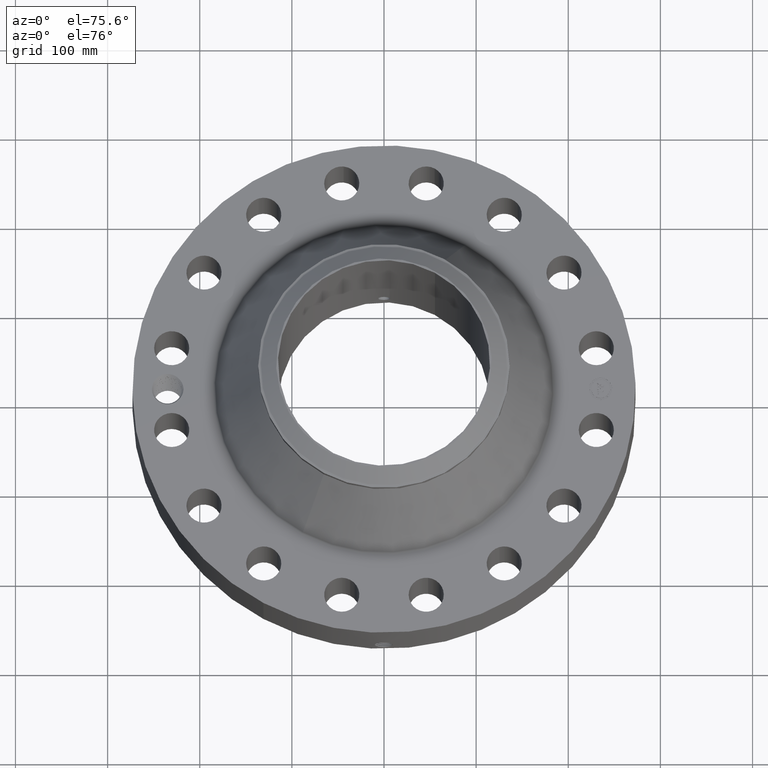
[diagram: clean part render]
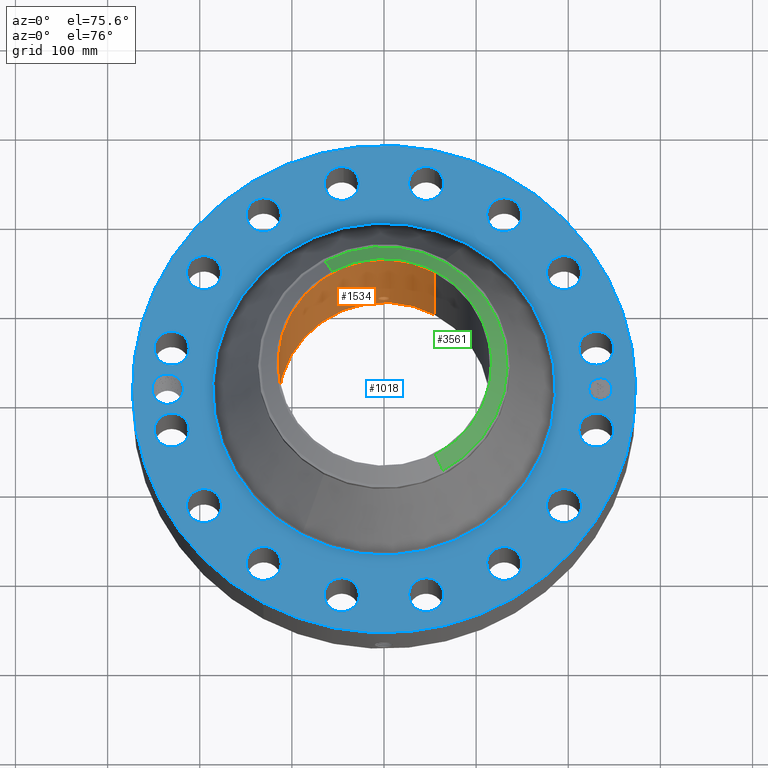
[diagram: same view with three faces highlighted in distinct colors, each labeled with its STEP entity id]
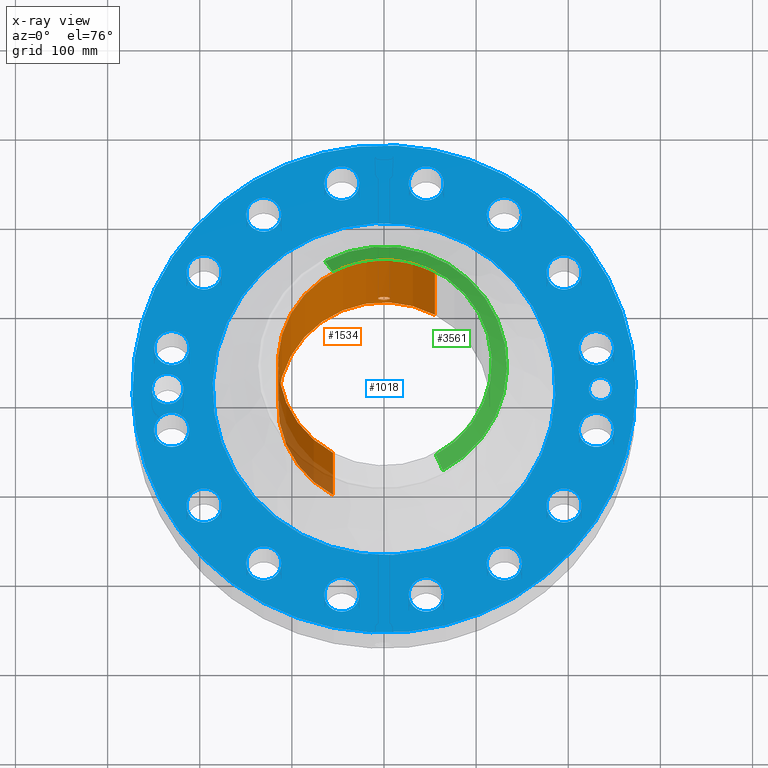
[diagram: x-ray of the same camera — body ghosted, the three highlighted faces saturated]
A machine part, auxiliary view with three faces highlighted in distinct colors.
The next image is the same camera in x-ray (body ghosted, the three faces saturated) — at least one of them is partly hidden behind the body in this view.
Their STEP definitions:

[orange] entity #1534 — the highlighted cylindrical surface (partial cylindrical patch) has radius 115.087 mm, axis along (0, 0, -1).
#262=AXIS2_PLACEMENT_3D('Circle Axis2P3D',#260,#261,$) ;
#1411=AXIS2_PLACEMENT_3D('Cylinder Axis2P3D',#1408,#1409,#1410) ;
#1483=AXIS2_PLACEMENT_3D('Circle Axis2P3D',#1481,#1482,$) ;
#255=CARTESIAN_POINT('Vertex',(2.17227711542,3.97632658794,0.250000000001)) ;
#257=CARTESIAN_POINT('Vertex',(-2.17227711542,-3.97632658794,0.250000000001)) ;
#260=CARTESIAN_POINT('Axis2P3D Location',(0.,0.,0.250000000001)) ;
#1408=CARTESIAN_POINT('Axis2P3D Location',(0.,0.,3.87500000002)) ;
#1417=CARTESIAN_POINT('Vertex',(2.17227711542,3.97632658794,7.50000000003)) ;
#1419=CARTESIAN_POINT('Vertex',(-2.17227711542,-3.97632658794,7.50000000003)) ;
#1422=CARTESIAN_POINT('Line Origine',(2.17227711542,3.97632658794,3.87500000002)) ;
#1427=CARTESIAN_POINT('Line Origine',(-2.17227711542,-3.97632658794,3.87500000002)) ;
#1481=CARTESIAN_POINT('Axis2P3D Location',(0.,0.,7.50000000003)) ;
#1493=CARTESIAN_POINT('Control Point',(0.219395640473,4.52568520261,1.05985638466)) ;
#1494=CARTESIAN_POINT('Control Point',(0.206921797472,4.52628990812,1.08268960111)) ;
#1495=CARTESIAN_POINT('Control Point',(0.191478678792,4.52699548081,1.10389800206)) ;
#1496=CARTESIAN_POINT('Control Point',(0.173346302341,4.52774738713,1.12296901975)) ;
#1497=CARTESIAN_POINT('Control Point',(0.112144340374,4.52992190758,1.17244362319)) ;
#1498=CARTESIAN_POINT('Control Point',(0.0349953647202,4.53133468305,1.19597035494)) ;
#1499=CARTESIAN_POINT('Control Point',(-0.0195460463266,4.53144042093,1.19761227825)) ;
#1500=CARTESIAN_POINT('Control Point',(-0.124127171529,4.52988594276,1.17247727722)) ;
#1501=CARTESIAN_POINT('Control Point',(-0.203169532668,4.5266673525,1.09958243678)) ;
#1502=CARTESIAN_POINT('Control Point',(-0.232150948599,4.52508220159,1.05337696747)) ;
#1503=CARTESIAN_POINT('Control Point',(-0.255830507533,4.52377648326,0.975217106169)) ;
#1504=CARTESIAN_POINT('Control Point',(-0.248300479991,4.5241913412,0.895819479664)) ;
#1505=CARTESIAN_POINT('Control Point',(-0.242066282354,4.52453988756,0.869228622534)) ;
#1506=CARTESIAN_POINT('Control Point',(-0.232326354228,4.52505834897,0.843813128112)) ;
#1507=CARTESIAN_POINT('Control Point',(-0.219395640473,4.52568520261,0.820143615352)) ;
#1508=CARTESIAN_POINT('Vertex',(0.219395640473,4.52568520261,1.05985638466)) ;
#1510=CARTESIAN_POINT('Vertex',(-0.219395640473,4.52568520261,0.820143615352)) ;
#1514=CARTESIAN_POINT('Control Point',(-0.219395640473,4.52568520261,0.820143615352)) ;
#1515=CARTESIAN_POINT('Control Point',(-0.206921797479,4.52628990812,0.797310398908)) ;
#1516=CARTESIAN_POINT('Control Point',(-0.191478678808,4.52699548081,0.776101997968)) ;
#1517=CARTESIAN_POINT('Control Point',(-0.173346302318,4.52774738713,0.757030980239)) ;
#1518=CARTESIAN_POINT('Control Point',(-0.112144340354,4.52992190758,0.707556376813)) ;
#1519=CARTESIAN_POINT('Control Point',(-0.0349953647085,4.53133468305,0.684029645063)) ;
#1520=CARTESIAN_POINT('Control Point',(0.019546046319,4.53144042093,0.682387721754)) ;
#1521=CARTESIAN_POINT('Control Point',(0.124127171536,4.52988594276,0.707522722783)) ;
#1522=CARTESIAN_POINT('Control Point',(0.20316953268,4.5266673525,0.780417563245)) ;
#1523=CARTESIAN_POINT('Control Point',(0.232150948594,4.52508220159,0.826623032526)) ;
#1524=CARTESIAN_POINT('Control Point',(0.255830507546,4.52377648326,0.904782893872)) ;
#1525=CARTESIAN_POINT('Control Point',(0.248300479983,4.5241913412,0.984180520424)) ;
#1526=CARTESIAN_POINT('Control Point',(0.242066282382,4.52453988756,1.0107713774)) ;
#1527=CARTESIAN_POINT('Control Point',(0.232326354246,4.52505834897,1.03618687186)) ;
#1528=CARTESIAN_POINT('Control Point',(0.219395640473,4.52568520261,1.05985638466)) ;
#261=DIRECTION('Axis2P3D Direction',(0.,0.,-0.0393700787402)) ;
#1409=DIRECTION('Axis2P3D Direction',(0.,0.,-0.0393700787402)) ;
#1410=DIRECTION('Axis2P3D XDirection',(-0.0188750212049,-0.0345504945626,0.)) ;
#1423=DIRECTION('Vector Direction',(0.,0.,-0.0393700787402)) ;
#1428=DIRECTION('Vector Direction',(0.,0.,-0.0393700787402)) ;
#1482=DIRECTION('Axis2P3D Direction',(0.,0.,-0.0393700787402)) ;
#1424=VECTOR('Line Direction',#1423,0.0393700787402) ;
#1429=VECTOR('Line Direction',#1428,0.0393700787402) ;
#1487=ORIENTED_EDGE('',*,*,#1485,.F.) ;
#1488=ORIENTED_EDGE('',*,*,#1431,.T.) ;
#1489=ORIENTED_EDGE('',*,*,#264,.T.) ;
#1490=ORIENTED_EDGE('',*,*,#1426,.F.) ;
#1531=ORIENTED_EDGE('',*,*,#1512,.F.) ;
#1532=ORIENTED_EDGE('',*,*,#1529,.F.) ;
#1533=FACE_BOUND('',#1530,.T.) ;
#1534=ADVANCED_FACE('PartBody',(#1491,#1533),#1412,.F.) ;
#1492=B_SPLINE_CURVE_WITH_KNOTS('',5,(#1493,#1494,#1495,#1496,#1497,#1498,#1499,#1500,#1501,#1502,#1503,#1504,#1505,#1506,#1507),.UNSPECIFIED.,.F.,.U.,(6,3,3,3,6),(0.,4.6742839612,14.0218472756,23.3718191631,28.2173048649),.UNSPECIFIED.) ;
#1513=B_SPLINE_CURVE_WITH_KNOTS('',5,(#1514,#1515,#1516,#1517,#1518,#1519,#1520,#1521,#1522,#1523,#1524,#1525,#1526,#1527,#1528),.UNSPECIFIED.,.F.,.U.,(6,3,3,3,6),(0.,4.67428395881,14.021847274,23.3718191628,28.2173048716),.UNSPECIFIED.) ;
#263=CIRCLE('generated circle',#262,4.53100000002) ;
#1484=CIRCLE('generated circle',#1483,4.53100000002) ;
#1412=CYLINDRICAL_SURFACE('generated cylinder',#1411,4.53100000002) ;
#264=EDGE_CURVE('',#258,#256,#263,.T.) ;
#1426=EDGE_CURVE('',#1418,#256,#1425,.T.) ;
#1431=EDGE_CURVE('',#1420,#258,#1430,.T.) ;
#1485=EDGE_CURVE('',#1420,#1418,#1484,.T.) ;
#1512=EDGE_CURVE('',#1509,#1511,#1492,.T.) ;
#1529=EDGE_CURVE('',#1511,#1509,#1513,.T.) ;
#1486=EDGE_LOOP('',(#1487,#1488,#1489,#1490)) ;
#1530=EDGE_LOOP('',(#1531,#1532)) ;
#1491=FACE_OUTER_BOUND('',#1486,.T.) ;
#1425=LINE('Line',#1422,#1424) ;
#1430=LINE('Line',#1427,#1429) ;
#256=VERTEX_POINT('',#255) ;
#258=VERTEX_POINT('',#257) ;
#1418=VERTEX_POINT('',#1417) ;
#1420=VERTEX_POINT('',#1419) ;
#1509=VERTEX_POINT('',#1508) ;
#1511=VERTEX_POINT('',#1510) ;

[blue] entity #1018 — the highlighted planar face has unit normal (0, 0, -1).
#58=AXIS2_PLACEMENT_3D('Circle Axis2P3D',#56,#57,$) ;
#542=AXIS2_PLACEMENT_3D('Circle Axis2P3D',#540,#541,$) ;
#642=AXIS2_PLACEMENT_3D('Plane Axis2P3D',#639,#640,#641) ;
#678=AXIS2_PLACEMENT_3D('Circle Axis2P3D',#676,#677,$) ;
#685=AXIS2_PLACEMENT_3D('Circle Axis2P3D',#683,#684,$) ;
#696=AXIS2_PLACEMENT_3D('Circle Axis2P3D',#694,#695,$) ;
#705=AXIS2_PLACEMENT_3D('Circle Axis2P3D',#703,#704,$) ;
#714=AXIS2_PLACEMENT_3D('Circle Axis2P3D',#712,#713,$) ;
#723=AXIS2_PLACEMENT_3D('Circle Axis2P3D',#721,#722,$) ;
#732=AXIS2_PLACEMENT_3D('Circle Axis2P3D',#730,#731,$) ;
#741=AXIS2_PLACEMENT_3D('Circle Axis2P3D',#739,#740,$) ;
#750=AXIS2_PLACEMENT_3D('Circle Axis2P3D',#748,#749,$) ;
#759=AXIS2_PLACEMENT_3D('Circle Axis2P3D',#757,#758,$) ;
#768=AXIS2_PLACEMENT_3D('Circle Axis2P3D',#766,#767,$) ;
#777=AXIS2_PLACEMENT_3D('Circle Axis2P3D',#775,#776,$) ;
#786=AXIS2_PLACEMENT_3D('Circle Axis2P3D',#784,#785,$) ;
#795=AXIS2_PLACEMENT_3D('Circle Axis2P3D',#793,#794,$) ;
#804=AXIS2_PLACEMENT_3D('Circle Axis2P3D',#802,#803,$) ;
#813=AXIS2_PLACEMENT_3D('Circle Axis2P3D',#811,#812,$) ;
#822=AXIS2_PLACEMENT_3D('Circle Axis2P3D',#820,#821,$) ;
#831=AXIS2_PLACEMENT_3D('Circle Axis2P3D',#829,#830,$) ;
#840=AXIS2_PLACEMENT_3D('Circle Axis2P3D',#838,#839,$) ;
#849=AXIS2_PLACEMENT_3D('Circle Axis2P3D',#847,#848,$) ;
#858=AXIS2_PLACEMENT_3D('Circle Axis2P3D',#856,#857,$) ;
#867=AXIS2_PLACEMENT_3D('Circle Axis2P3D',#865,#866,$) ;
#876=AXIS2_PLACEMENT_3D('Circle Axis2P3D',#874,#875,$) ;
#885=AXIS2_PLACEMENT_3D('Circle Axis2P3D',#883,#884,$) ;
#894=AXIS2_PLACEMENT_3D('Circle Axis2P3D',#892,#893,$) ;
#903=AXIS2_PLACEMENT_3D('Circle Axis2P3D',#901,#902,$) ;
#912=AXIS2_PLACEMENT_3D('Circle Axis2P3D',#910,#911,$) ;
#921=AXIS2_PLACEMENT_3D('Circle Axis2P3D',#919,#920,$) ;
#930=AXIS2_PLACEMENT_3D('Circle Axis2P3D',#928,#929,$) ;
#939=AXIS2_PLACEMENT_3D('Circle Axis2P3D',#937,#938,$) ;
#948=AXIS2_PLACEMENT_3D('Circle Axis2P3D',#946,#947,$) ;
#957=AXIS2_PLACEMENT_3D('Circle Axis2P3D',#955,#956,$) ;
#966=AXIS2_PLACEMENT_3D('Circle Axis2P3D',#964,#965,$) ;
#975=AXIS2_PLACEMENT_3D('Circle Axis2P3D',#973,#974,$) ;
#984=AXIS2_PLACEMENT_3D('Circle Axis2P3D',#982,#983,$) ;
#993=AXIS2_PLACEMENT_3D('Circle Axis2P3D',#991,#992,$) ;
#1002=AXIS2_PLACEMENT_3D('Circle Axis2P3D',#1000,#1001,$) ;
#1011=AXIS2_PLACEMENT_3D('Circle Axis2P3D',#1009,#1010,$) ;
#53=CARTESIAN_POINT('Vertex',(-5.15382454002,-9.43401254036,3.00000000001)) ;
#56=CARTESIAN_POINT('Axis2P3D Location',(0.,0.,3.00000000001)) ;
#60=CARTESIAN_POINT('Vertex',(5.15382454002,9.43401254036,3.00000000001)) ;
#540=CARTESIAN_POINT('Axis2P3D Location',(0.,0.,3.00000000001)) ;
#639=CARTESIAN_POINT('Axis2P3D Location',(0.,10.75,3.00000000001)) ;
#649=CARTESIAN_POINT('Control Point',(-8.56250000003,-2.23792987641E-015,3.00000000001)) ;
#650=CARTESIAN_POINT('Control Point',(-8.56486308622,0.0644949363409,3.00000000001)) ;
#651=CARTESIAN_POINT('Control Point',(-8.57479440552,0.128582344881,3.00000000001)) ;
#652=CARTESIAN_POINT('Control Point',(-8.59223336688,0.191067000151,3.00000000001)) ;
#653=CARTESIAN_POINT('Control Point',(-8.62965644107,0.281919288809,3.00000000001)) ;
#654=CARTESIAN_POINT('Control Point',(-8.68225432959,0.363946301711,3.00000000001)) ;
#655=CARTESIAN_POINT('Control Point',(-8.70198762269,0.390886934377,3.00000000001)) ;
#656=CARTESIAN_POINT('Control Point',(-8.72331642014,0.416507205361,3.00000000001)) ;
#657=CARTESIAN_POINT('Control Point',(-8.74612160305,0.440684604968,3.00000000001)) ;
#658=CARTESIAN_POINT('Vertex',(-8.56250000003,-2.23792987641E-015,3.00000000001)) ;
#660=CARTESIAN_POINT('Vertex',(-8.74612160305,0.440684604968,3.00000000001)) ;
#664=CARTESIAN_POINT('Control Point',(-8.56250000003,2.23792987641E-015,3.00000000001)) ;
#665=CARTESIAN_POINT('Control Point',(-8.56486374464,-0.0645129057181,3.00000000001)) ;
#666=CARTESIAN_POINT('Control Point',(-8.57479993211,-0.128618054953,3.00000000001)) ;
#667=CARTESIAN_POINT('Control Point',(-8.59223774309,-0.191096216165,3.00000000001)) ;
#668=CARTESIAN_POINT('Control Point',(-8.62967336766,-0.28197694147,3.00000000001)) ;
#669=CARTESIAN_POINT('Control Point',(-8.6822634033,-0.363983261862,3.00000000001)) ;
#670=CARTESIAN_POINT('Control Point',(-8.70202180582,-0.390949652124,3.00000000001)) ;
#671=CARTESIAN_POINT('Control Point',(-8.72337509328,-0.416588152242,3.00000000001)) ;
#672=CARTESIAN_POINT('Control Point',(-8.74620303266,-0.440777694156,3.00000000001)) ;
#673=CARTESIAN_POINT('Vertex',(-8.74620303266,-0.440777694156,3.00000000001)) ;
#676=CARTESIAN_POINT('Axis2P3D Location',(-9.25000000004,0.,3.00000000001)) ;
#680=CARTESIAN_POINT('Vertex',(-9.83745376697,0.320927455543,3.00000000001)) ;
#683=CARTESIAN_POINT('Axis2P3D Location',(-9.25000000004,0.,3.00000000001)) ;
#694=CARTESIAN_POINT('Axis2P3D Location',(9.07226384377,-1.80458547866,3.00000000001)) ;
#698=CARTESIAN_POINT('Vertex',(8.41407692235,-1.4450163247,3.00000000001)) ;
#700=CARTESIAN_POINT('Vertex',(9.73045076519,-2.16415463261,3.00000000001)) ;
#703=CARTESIAN_POINT('Axis2P3D Location',(9.07226384377,-1.80458547866,3.00000000001)) ;
#712=CARTESIAN_POINT('Axis2P3D Location',(0.,0.,3.00000000001)) ;
#716=CARTESIAN_POINT('Vertex',(-3.51132024854,-6.42742860196,3.00000000001)) ;
#718=CARTESIAN_POINT('Vertex',(3.51132024854,6.42742860196,3.00000000001)) ;
#721=CARTESIAN_POINT('Axis2P3D Location',(0.,0.,3.00000000001)) ;
#730=CARTESIAN_POINT('Axis2P3D Location',(7.69109391383,-5.13902465545,3.00000000001)) ;
#734=CARTESIAN_POINT('Vertex',(8.16157818109,-5.72310046754,3.00000000001)) ;
#736=CARTESIAN_POINT('Vertex',(7.22060964657,-4.55494884336,3.00000000001)) ;
#739=CARTESIAN_POINT('Axis2P3D Location',(7.69109391383,-5.13902465545,3.00000000001)) ;
#748=CARTESIAN_POINT('Axis2P3D Location',(5.13902465545,-7.69109391383,3.00000000001)) ;
#752=CARTESIAN_POINT('Vertex',(5.35017930381,-8.41075613632,3.00000000001)) ;
#754=CARTESIAN_POINT('Vertex',(4.92787000709,-6.97143169134,3.00000000001)) ;
#757=CARTESIAN_POINT('Axis2P3D Location',(5.13902465545,-7.69109391383,3.00000000001)) ;
#766=CARTESIAN_POINT('Axis2P3D Location',(1.80458547866,-9.07226384377,3.00000000001)) ;
#770=CARTESIAN_POINT('Vertex',(1.72426412702,-9.81795042704,3.00000000001)) ;
#772=CARTESIAN_POINT('Vertex',(1.88490683029,-8.32657726049,3.00000000001)) ;
#775=CARTESIAN_POINT('Axis2P3D Location',(1.80458547866,-9.07226384377,3.00000000001)) ;
#784=CARTESIAN_POINT('Axis2P3D Location',(-1.80458547866,-9.07226384377,3.00000000001)) ;
#788=CARTESIAN_POINT('Vertex',(-2.16415463261,-9.73045076519,3.00000000001)) ;
#790=CARTESIAN_POINT('Vertex',(-1.4450163247,-8.41407692235,3.00000000001)) ;
#793=CARTESIAN_POINT('Axis2P3D Location',(-1.80458547866,-9.07226384377,3.00000000001)) ;
#802=CARTESIAN_POINT('Axis2P3D Location',(-5.13902465545,-7.69109391383,3.00000000001)) ;
#806=CARTESIAN_POINT('Vertex',(-5.72310046754,-8.16157818109,3.00000000001)) ;
#808=CARTESIAN_POINT('Vertex',(-4.55494884336,-7.22060964657,3.00000000001)) ;
#811=CARTESIAN_POINT('Axis2P3D Location',(-5.13902465545,-7.69109391383,3.00000000001)) ;
#820=CARTESIAN_POINT('Axis2P3D Location',(-7.69109391383,-5.13902465545,3.00000000001)) ;
#824=CARTESIAN_POINT('Vertex',(-8.41075613632,-5.35017930381,3.00000000001)) ;
#826=CARTESIAN_POINT('Vertex',(-6.97143169134,-4.92787000709,3.00000000001)) ;
#829=CARTESIAN_POINT('Axis2P3D Location',(-7.69109391383,-5.13902465545,3.00000000001)) ;
#838=CARTESIAN_POINT('Axis2P3D Location',(-9.07226384377,-1.80458547866,3.00000000001)) ;
#842=CARTESIAN_POINT('Vertex',(-9.81795042704,-1.72426412702,3.00000000001)) ;
#844=CARTESIAN_POINT('Vertex',(-8.32657726049,-1.88490683029,3.00000000001)) ;
#847=CARTESIAN_POINT('Axis2P3D Location',(-9.07226384377,-1.80458547866,3.00000000001)) ;
#856=CARTESIAN_POINT('Axis2P3D Location',(-9.07226384377,1.80458547866,3.00000000001)) ;
#860=CARTESIAN_POINT('Vertex',(-9.73045076519,2.16415463261,3.00000000001)) ;
#862=CARTESIAN_POINT('Vertex',(-8.41407692235,1.4450163247,3.00000000001)) ;
#865=CARTESIAN_POINT('Axis2P3D Location',(-9.07226384377,1.80458547866,3.00000000001)) ;
#874=CARTESIAN_POINT('Axis2P3D Location',(-7.69109391383,5.13902465545,3.00000000001)) ;
#878=CARTESIAN_POINT('Vertex',(-8.16157818109,5.72310046754,3.00000000001)) ;
#880=CARTESIAN_POINT('Vertex',(-7.22060964657,4.55494884336,3.00000000001)) ;
#883=CARTESIAN_POINT('Axis2P3D Location',(-7.69109391383,5.13902465545,3.00000000001)) ;
#892=CARTESIAN_POINT('Axis2P3D Location',(-5.13902465545,7.69109391383,3.00000000001)) ;
#896=CARTESIAN_POINT('Vertex',(-5.35017930381,8.41075613632,3.00000000001)) ;
#898=CARTESIAN_POINT('Vertex',(-4.92787000709,6.97143169134,3.00000000001)) ;
#901=CARTESIAN_POINT('Axis2P3D Location',(-5.13902465545,7.69109391383,3.00000000001)) ;
#910=CARTESIAN_POINT('Axis2P3D Location',(-1.80458547866,9.07226384377,3.00000000001)) ;
#914=CARTESIAN_POINT('Vertex',(-1.72426412702,9.81795042704,3.00000000001)) ;
#916=CARTESIAN_POINT('Vertex',(-1.88490683029,8.32657726049,3.00000000001)) ;
#919=CARTESIAN_POINT('Axis2P3D Location',(-1.80458547866,9.07226384377,3.00000000001)) ;
#928=CARTESIAN_POINT('Axis2P3D Location',(1.80458547866,9.07226384377,3.00000000001)) ;
#932=CARTESIAN_POINT('Vertex',(2.16415463261,9.73045076519,3.00000000001)) ;
#934=CARTESIAN_POINT('Vertex',(1.4450163247,8.41407692235,3.00000000001)) ;
#937=CARTESIAN_POINT('Axis2P3D Location',(1.80458547866,9.07226384377,3.00000000001)) ;
#946=CARTESIAN_POINT('Axis2P3D Location',(5.13902465545,7.69109391383,3.00000000001)) ;
#950=CARTESIAN_POINT('Vertex',(5.72310046754,8.16157818109,3.00000000001)) ;
#952=CARTESIAN_POINT('Vertex',(4.55494884336,7.22060964657,3.00000000001)) ;
#955=CARTESIAN_POINT('Axis2P3D Location',(5.13902465545,7.69109391383,3.00000000001)) ;
#964=CARTESIAN_POINT('Axis2P3D Location',(7.69109391383,5.13902465545,3.00000000001)) ;
#968=CARTESIAN_POINT('Vertex',(8.41075613632,5.35017930381,3.00000000001)) ;
#970=CARTESIAN_POINT('Vertex',(6.97143169134,4.92787000709,3.00000000001)) ;
#973=CARTESIAN_POINT('Axis2P3D Location',(7.69109391383,5.13902465545,3.00000000001)) ;
#982=CARTESIAN_POINT('Axis2P3D Location',(9.07226384377,1.80458547866,3.00000000001)) ;
#986=CARTESIAN_POINT('Vertex',(9.81795042704,1.72426412702,3.00000000001)) ;
#988=CARTESIAN_POINT('Vertex',(8.32657726049,1.88490683029,3.00000000001)) ;
#991=CARTESIAN_POINT('Axis2P3D Location',(9.07226384377,1.80458547866,3.00000000001)) ;
#1000=CARTESIAN_POINT('Axis2P3D Location',(9.25000000004,-4.02827377754E-014,3.00000000001)) ;
#1004=CARTESIAN_POINT('Vertex',(9.25000000004,0.499999995002,3.00000000001)) ;
#1006=CARTESIAN_POINT('Vertex',(9.25000000004,-0.499999995002,3.00000000001)) ;
#1009=CARTESIAN_POINT('Axis2P3D Location',(9.25000000004,-4.02827377754E-014,3.00000000001)) ;
#57=DIRECTION('Axis2P3D Direction',(0.,0.,-0.0393700787402)) ;
#541=DIRECTION('Axis2P3D Direction',(0.,0.,-0.0393700787402)) ;
#640=DIRECTION('Axis2P3D Direction',(0.,0.,-0.0393700787402)) ;
#641=DIRECTION('Axis2P3D XDirection',(0.0393700787402,0.,0.)) ;
#677=DIRECTION('Axis2P3D Direction',(0.,0.,-0.0393700787402)) ;
#684=DIRECTION('Axis2P3D Direction',(0.,0.,-0.0393700787402)) ;
#695=DIRECTION('Axis2P3D Direction',(0.,0.,-0.0393700787402)) ;
#704=DIRECTION('Axis2P3D Direction',(0.,0.,-0.0393700787402)) ;
#713=DIRECTION('Axis2P3D Direction',(0.,0.,-0.0393700787402)) ;
#722=DIRECTION('Axis2P3D Direction',(0.,0.,-0.0393700787402)) ;
#731=DIRECTION('Axis2P3D Direction',(0.,0.,-0.0393700787402)) ;
#740=DIRECTION('Axis2P3D Direction',(0.,0.,-0.0393700787402)) ;
#749=DIRECTION('Axis2P3D Direction',(0.,0.,-0.0393700787402)) ;
#758=DIRECTION('Axis2P3D Direction',(0.,0.,-0.0393700787402)) ;
#767=DIRECTION('Axis2P3D Direction',(0.,0.,-0.0393700787402)) ;
#776=DIRECTION('Axis2P3D Direction',(0.,0.,-0.0393700787402)) ;
#785=DIRECTION('Axis2P3D Direction',(0.,0.,-0.0393700787402)) ;
#794=DIRECTION('Axis2P3D Direction',(0.,0.,-0.0393700787402)) ;
#803=DIRECTION('Axis2P3D Direction',(0.,0.,-0.0393700787402)) ;
#812=DIRECTION('Axis2P3D Direction',(0.,0.,-0.0393700787402)) ;
#821=DIRECTION('Axis2P3D Direction',(0.,0.,-0.0393700787402)) ;
#830=DIRECTION('Axis2P3D Direction',(0.,0.,-0.0393700787402)) ;
#839=DIRECTION('Axis2P3D Direction',(0.,0.,-0.0393700787402)) ;
#848=DIRECTION('Axis2P3D Direction',(0.,0.,-0.0393700787402)) ;
#857=DIRECTION('Axis2P3D Direction',(0.,0.,-0.0393700787402)) ;
#866=DIRECTION('Axis2P3D Direction',(0.,0.,-0.0393700787402)) ;
#875=DIRECTION('Axis2P3D Direction',(0.,0.,-0.0393700787402)) ;
#884=DIRECTION('Axis2P3D Direction',(0.,0.,-0.0393700787402)) ;
#893=DIRECTION('Axis2P3D Direction',(0.,0.,-0.0393700787402)) ;
#902=DIRECTION('Axis2P3D Direction',(0.,0.,-0.0393700787402)) ;
#911=DIRECTION('Axis2P3D Direction',(0.,0.,-0.0393700787402)) ;
#920=DIRECTION('Axis2P3D Direction',(0.,0.,-0.0393700787402)) ;
#929=DIRECTION('Axis2P3D Direction',(0.,0.,-0.0393700787402)) ;
#938=DIRECTION('Axis2P3D Direction',(0.,0.,-0.0393700787402)) ;
#947=DIRECTION('Axis2P3D Direction',(0.,0.,-0.0393700787402)) ;
#956=DIRECTION('Axis2P3D Direction',(0.,0.,-0.0393700787402)) ;
#965=DIRECTION('Axis2P3D Direction',(0.,0.,-0.0393700787402)) ;
#974=DIRECTION('Axis2P3D Direction',(0.,0.,-0.0393700787402)) ;
#983=DIRECTION('Axis2P3D Direction',(0.,0.,-0.0393700787402)) ;
#992=DIRECTION('Axis2P3D Direction',(0.,0.,-0.0393700787402)) ;
#1001=DIRECTION('Axis2P3D Direction',(0.,0.,-0.0393700787402)) ;
#1010=DIRECTION('Axis2P3D Direction',(0.,0.,-0.0393700787402)) ;
#645=ORIENTED_EDGE('',*,*,#544,.F.) ;
#646=ORIENTED_EDGE('',*,*,#62,.F.) ;
#689=ORIENTED_EDGE('',*,*,#662,.F.) ;
#690=ORIENTED_EDGE('',*,*,#675,.T.) ;
#691=ORIENTED_EDGE('',*,*,#682,.T.) ;
#692=ORIENTED_EDGE('',*,*,#687,.T.) ;
#709=ORIENTED_EDGE('',*,*,#702,.T.) ;
#710=ORIENTED_EDGE('',*,*,#707,.T.) ;
#727=ORIENTED_EDGE('',*,*,#720,.T.) ;
#728=ORIENTED_EDGE('',*,*,#725,.T.) ;
#745=ORIENTED_EDGE('',*,*,#738,.T.) ;
#746=ORIENTED_EDGE('',*,*,#743,.T.) ;
#763=ORIENTED_EDGE('',*,*,#756,.T.) ;
#764=ORIENTED_EDGE('',*,*,#761,.T.) ;
#781=ORIENTED_EDGE('',*,*,#774,.T.) ;
#782=ORIENTED_EDGE('',*,*,#779,.T.) ;
#799=ORIENTED_EDGE('',*,*,#792,.T.) ;
#800=ORIENTED_EDGE('',*,*,#797,.T.) ;
#817=ORIENTED_EDGE('',*,*,#810,.T.) ;
#818=ORIENTED_EDGE('',*,*,#815,.T.) ;
#835=ORIENTED_EDGE('',*,*,#828,.T.) ;
#836=ORIENTED_EDGE('',*,*,#833,.T.) ;
#853=ORIENTED_EDGE('',*,*,#846,.T.) ;
#854=ORIENTED_EDGE('',*,*,#851,.T.) ;
#871=ORIENTED_EDGE('',*,*,#864,.T.) ;
#872=ORIENTED_EDGE('',*,*,#869,.T.) ;
#889=ORIENTED_EDGE('',*,*,#882,.T.) ;
#890=ORIENTED_EDGE('',*,*,#887,.T.) ;
#907=ORIENTED_EDGE('',*,*,#900,.T.) ;
#908=ORIENTED_EDGE('',*,*,#905,.T.) ;
#925=ORIENTED_EDGE('',*,*,#918,.T.) ;
#926=ORIENTED_EDGE('',*,*,#923,.T.) ;
#943=ORIENTED_EDGE('',*,*,#936,.T.) ;
#944=ORIENTED_EDGE('',*,*,#941,.T.) ;
#961=ORIENTED_EDGE('',*,*,#954,.T.) ;
#962=ORIENTED_EDGE('',*,*,#959,.T.) ;
#979=ORIENTED_EDGE('',*,*,#972,.T.) ;
#980=ORIENTED_EDGE('',*,*,#977,.T.) ;
#997=ORIENTED_EDGE('',*,*,#990,.T.) ;
#998=ORIENTED_EDGE('',*,*,#995,.T.) ;
#1015=ORIENTED_EDGE('',*,*,#1008,.T.) ;
#1016=ORIENTED_EDGE('',*,*,#1013,.T.) ;
#693=FACE_BOUND('',#688,.T.) ;
#711=FACE_BOUND('',#708,.T.) ;
#729=FACE_BOUND('',#726,.T.) ;
#747=FACE_BOUND('',#744,.T.) ;
#765=FACE_BOUND('',#762,.T.) ;
#783=FACE_BOUND('',#780,.T.) ;
#801=FACE_BOUND('',#798,.T.) ;
#819=FACE_BOUND('',#816,.T.) ;
#837=FACE_BOUND('',#834,.T.) ;
#855=FACE_BOUND('',#852,.T.) ;
#873=FACE_BOUND('',#870,.T.) ;
#891=FACE_BOUND('',#888,.T.) ;
#909=FACE_BOUND('',#906,.T.) ;
#927=FACE_BOUND('',#924,.T.) ;
#945=FACE_BOUND('',#942,.T.) ;
#963=FACE_BOUND('',#960,.T.) ;
#981=FACE_BOUND('',#978,.T.) ;
#999=FACE_BOUND('',#996,.T.) ;
#1017=FACE_BOUND('',#1014,.T.) ;
#1018=ADVANCED_FACE('PartBody',(#647,#693,#711,#729,#747,#765,#783,#801,#819,#837,#855,#873,#891,#909,#927,#945,#963,#981,#999,#1017),#643,.F.) ;
#648=B_SPLINE_CURVE_WITH_KNOTS('',5,(#649,#650,#651,#652,#653,#654,#655,#656,#657),.UNSPECIFIED.,.F.,.U.,(6,3,6),(0.,11.2736213626,17.1557407053),.UNSPECIFIED.) ;
#663=B_SPLINE_CURVE_WITH_KNOTS('',5,(#664,#665,#666,#667,#668,#669,#670,#671,#672),.UNSPECIFIED.,.F.,.U.,(6,3,6),(0.,11.2767623839,17.1737660573),.UNSPECIFIED.) ;
#59=CIRCLE('generated circle',#58,10.75) ;
#543=CIRCLE('generated circle',#542,10.75) ;
#679=CIRCLE('generated circle',#678,0.669400000003) ;
#686=CIRCLE('generated circle',#685,0.669400000003) ;
#697=CIRCLE('generated circle',#696,0.750000000003) ;
#706=CIRCLE('generated circle',#705,0.750000000003) ;
#715=CIRCLE('generated circle',#714,7.32401586024) ;
#724=CIRCLE('generated circle',#723,7.32401586024) ;
#733=CIRCLE('generated circle',#732,0.750000000003) ;
#742=CIRCLE('generated circle',#741,0.750000000003) ;
#751=CIRCLE('generated circle',#750,0.750000000003) ;
#760=CIRCLE('generated circle',#759,0.750000000003) ;
#769=CIRCLE('generated circle',#768,0.750000000003) ;
#778=CIRCLE('generated circle',#777,0.750000000003) ;
#787=CIRCLE('generated circle',#786,0.750000000003) ;
#796=CIRCLE('generated circle',#795,0.750000000003) ;
#805=CIRCLE('generated circle',#804,0.750000000003) ;
#814=CIRCLE('generated circle',#813,0.750000000003) ;
#823=CIRCLE('generated circle',#822,0.750000000003) ;
#832=CIRCLE('generated circle',#831,0.750000000003) ;
#841=CIRCLE('generated circle',#840,0.750000000003) ;
#850=CIRCLE('generated circle',#849,0.750000000003) ;
#859=CIRCLE('generated circle',#858,0.750000000003) ;
#868=CIRCLE('generated circle',#867,0.750000000003) ;
#877=CIRCLE('generated circle',#876,0.750000000003) ;
#886=CIRCLE('generated circle',#885,0.750000000003) ;
#895=CIRCLE('generated circle',#894,0.750000000003) ;
#904=CIRCLE('generated circle',#903,0.750000000003) ;
#913=CIRCLE('generated circle',#912,0.750000000003) ;
#922=CIRCLE('generated circle',#921,0.750000000003) ;
#931=CIRCLE('generated circle',#930,0.750000000003) ;
#940=CIRCLE('generated circle',#939,0.750000000003) ;
#949=CIRCLE('generated circle',#948,0.750000000003) ;
#958=CIRCLE('generated circle',#957,0.750000000003) ;
#967=CIRCLE('generated circle',#966,0.750000000003) ;
#976=CIRCLE('generated circle',#975,0.750000000003) ;
#985=CIRCLE('generated circle',#984,0.750000000003) ;
#994=CIRCLE('generated circle',#993,0.750000000003) ;
#1003=CIRCLE('generated circle',#1002,0.499999995002) ;
#1012=CIRCLE('generated circle',#1011,0.499999995002) ;
#62=EDGE_CURVE('',#54,#61,#59,.T.) ;
#544=EDGE_CURVE('',#61,#54,#543,.T.) ;
#662=EDGE_CURVE('',#659,#661,#648,.T.) ;
#675=EDGE_CURVE('',#659,#674,#663,.T.) ;
#682=EDGE_CURVE('',#674,#681,#679,.T.) ;
#687=EDGE_CURVE('',#681,#661,#686,.T.) ;
#702=EDGE_CURVE('',#699,#701,#697,.T.) ;
#707=EDGE_CURVE('',#701,#699,#706,.T.) ;
#720=EDGE_CURVE('',#717,#719,#715,.T.) ;
#725=EDGE_CURVE('',#719,#717,#724,.T.) ;
#738=EDGE_CURVE('',#735,#737,#733,.T.) ;
#743=EDGE_CURVE('',#737,#735,#742,.T.) ;
#756=EDGE_CURVE('',#753,#755,#751,.T.) ;
#761=EDGE_CURVE('',#755,#753,#760,.T.) ;
#774=EDGE_CURVE('',#771,#773,#769,.T.) ;
#779=EDGE_CURVE('',#773,#771,#778,.T.) ;
#792=EDGE_CURVE('',#789,#791,#787,.T.) ;
#797=EDGE_CURVE('',#791,#789,#796,.T.) ;
#810=EDGE_CURVE('',#807,#809,#805,.T.) ;
#815=EDGE_CURVE('',#809,#807,#814,.T.) ;
#828=EDGE_CURVE('',#825,#827,#823,.T.) ;
#833=EDGE_CURVE('',#827,#825,#832,.T.) ;
#846=EDGE_CURVE('',#843,#845,#841,.T.) ;
#851=EDGE_CURVE('',#845,#843,#850,.T.) ;
#864=EDGE_CURVE('',#861,#863,#859,.T.) ;
#869=EDGE_CURVE('',#863,#861,#868,.T.) ;
#882=EDGE_CURVE('',#879,#881,#877,.T.) ;
#887=EDGE_CURVE('',#881,#879,#886,.T.) ;
#900=EDGE_CURVE('',#897,#899,#895,.T.) ;
#905=EDGE_CURVE('',#899,#897,#904,.T.) ;
#918=EDGE_CURVE('',#915,#917,#913,.T.) ;
#923=EDGE_CURVE('',#917,#915,#922,.T.) ;
#936=EDGE_CURVE('',#933,#935,#931,.T.) ;
#941=EDGE_CURVE('',#935,#933,#940,.T.) ;
#954=EDGE_CURVE('',#951,#953,#949,.T.) ;
#959=EDGE_CURVE('',#953,#951,#958,.T.) ;
#972=EDGE_CURVE('',#969,#971,#967,.T.) ;
#977=EDGE_CURVE('',#971,#969,#976,.T.) ;
#990=EDGE_CURVE('',#987,#989,#985,.T.) ;
#995=EDGE_CURVE('',#989,#987,#994,.T.) ;
#1008=EDGE_CURVE('',#1005,#1007,#1003,.T.) ;
#1013=EDGE_CURVE('',#1007,#1005,#1012,.T.) ;
#644=EDGE_LOOP('',(#645,#646)) ;
#688=EDGE_LOOP('',(#689,#690,#691,#692)) ;
#708=EDGE_LOOP('',(#709,#710)) ;
#726=EDGE_LOOP('',(#727,#728)) ;
#744=EDGE_LOOP('',(#745,#746)) ;
#762=EDGE_LOOP('',(#763,#764)) ;
#780=EDGE_LOOP('',(#781,#782)) ;
#798=EDGE_LOOP('',(#799,#800)) ;
#816=EDGE_LOOP('',(#817,#818)) ;
#834=EDGE_LOOP('',(#835,#836)) ;
#852=EDGE_LOOP('',(#853,#854)) ;
#870=EDGE_LOOP('',(#871,#872)) ;
#888=EDGE_LOOP('',(#889,#890)) ;
#906=EDGE_LOOP('',(#907,#908)) ;
#924=EDGE_LOOP('',(#925,#926)) ;
#942=EDGE_LOOP('',(#943,#944)) ;
#960=EDGE_LOOP('',(#961,#962)) ;
#978=EDGE_LOOP('',(#979,#980)) ;
#996=EDGE_LOOP('',(#997,#998)) ;
#1014=EDGE_LOOP('',(#1015,#1016)) ;
#647=FACE_OUTER_BOUND('',#644,.T.) ;
#643=PLANE('',#642) ;
#54=VERTEX_POINT('',#53) ;
#61=VERTEX_POINT('',#60) ;
#659=VERTEX_POINT('',#658) ;
#661=VERTEX_POINT('',#660) ;
#674=VERTEX_POINT('',#673) ;
#681=VERTEX_POINT('',#680) ;
#699=VERTEX_POINT('',#698) ;
#701=VERTEX_POINT('',#700) ;
#717=VERTEX_POINT('',#716) ;
#719=VERTEX_POINT('',#718) ;
#735=VERTEX_POINT('',#734) ;
#737=VERTEX_POINT('',#736) ;
#753=VERTEX_POINT('',#752) ;
#755=VERTEX_POINT('',#754) ;
#771=VERTEX_POINT('',#770) ;
#773=VERTEX_POINT('',#772) ;
#789=VERTEX_POINT('',#788) ;
#791=VERTEX_POINT('',#790) ;
#807=VERTEX_POINT('',#806) ;
#809=VERTEX_POINT('',#808) ;
#825=VERTEX_POINT('',#824) ;
#827=VERTEX_POINT('',#826) ;
#843=VERTEX_POINT('',#842) ;
#845=VERTEX_POINT('',#844) ;
#861=VERTEX_POINT('',#860) ;
#863=VERTEX_POINT('',#862) ;
#879=VERTEX_POINT('',#878) ;
#881=VERTEX_POINT('',#880) ;
#897=VERTEX_POINT('',#896) ;
#899=VERTEX_POINT('',#898) ;
#915=VERTEX_POINT('',#914) ;
#917=VERTEX_POINT('',#916) ;
#933=VERTEX_POINT('',#932) ;
#935=VERTEX_POINT('',#934) ;
#951=VERTEX_POINT('',#950) ;
#953=VERTEX_POINT('',#952) ;
#969=VERTEX_POINT('',#968) ;
#971=VERTEX_POINT('',#970) ;
#987=VERTEX_POINT('',#986) ;
#989=VERTEX_POINT('',#988) ;
#1005=VERTEX_POINT('',#1004) ;
#1007=VERTEX_POINT('',#1006) ;

[green] entity #3561 — the highlighted conical surface has half-angle 52.5 deg.
#2689=AXIS2_PLACEMENT_3D('Circle Axis2P3D',#2687,#2688,$) ;
#3522=AXIS2_PLACEMENT_3D('Cone Axis2P3D',#3519,#3520,#3521) ;
#3552=AXIS2_PLACEMENT_3D('Circle Axis2P3D',#3550,#3551,$) ;
#2687=CARTESIAN_POINT('Axis2P3D Location',(0.,0.,7.50000000003)) ;
#2691=CARTESIAN_POINT('Vertex',(2.21002715783,-4.04542757707,7.50000000003)) ;
#2693=CARTESIAN_POINT('Vertex',(-2.21002715783,4.04542757707,7.50000000003)) ;
#3519=CARTESIAN_POINT('Axis2P3D Location',(0.,0.,7.50000000003)) ;
#3524=CARTESIAN_POINT('Line Origine',(-2.36496846038,4.32904572897,7.25201437259)) ;
#3528=CARTESIAN_POINT('Vertex',(-2.51990976293,4.61266388087,7.00402874516)) ;
#3535=CARTESIAN_POINT('Vertex',(2.51990976293,-4.61266388087,7.00402874516)) ;
#3538=CARTESIAN_POINT('Line Origine',(2.36496846038,-4.32904572897,7.25201437259)) ;
#3550=CARTESIAN_POINT('Axis2P3D Location',(0.,0.,7.00402874516)) ;
#2688=DIRECTION('Axis2P3D Direction',(0.,0.,-0.0393700787402)) ;
#3520=DIRECTION('Axis2P3D Direction',(-0.,-0.,-0.0393700787402)) ;
#3521=DIRECTION('Axis2P3D XDirection',(-0.0188750212049,0.0345504945626,0.)) ;
#3525=DIRECTION('Vector Direction',(-0.014974561121,0.02741075027,-0.023966985394)) ;
#3539=DIRECTION('Vector Direction',(0.014974561121,-0.02741075027,-0.023966985394)) ;
#3551=DIRECTION('Axis2P3D Direction',(0.,0.,-0.0393700787402)) ;
#3526=VECTOR('Line Direction',#3525,0.0393700787402) ;
#3540=VECTOR('Line Direction',#3539,0.0393700787402) ;
#3556=ORIENTED_EDGE('',*,*,#2695,.F.) ;
#3557=ORIENTED_EDGE('',*,*,#3542,.T.) ;
#3558=ORIENTED_EDGE('',*,*,#3554,.T.) ;
#3559=ORIENTED_EDGE('',*,*,#3530,.F.) ;
#3561=ADVANCED_FACE('PartBody',(#3560),#3523,.T.) ;
#2690=CIRCLE('generated circle',#2689,4.6097401575) ;
#3553=CIRCLE('generated circle',#3552,5.25610248105) ;
#3523=CONICAL_SURFACE('Cone',#3522,4.6097401575,0.916297857297) ;
#2695=EDGE_CURVE('',#2692,#2694,#2690,.F.) ;
#3530=EDGE_CURVE('',#2694,#3529,#3527,.T.) ;
#3542=EDGE_CURVE('',#2692,#3536,#3541,.T.) ;
#3554=EDGE_CURVE('',#3536,#3529,#3553,.F.) ;
#3555=EDGE_LOOP('',(#3556,#3557,#3558,#3559)) ;
#3560=FACE_OUTER_BOUND('',#3555,.T.) ;
#3527=LINE('Line',#3524,#3526) ;
#3541=LINE('Line',#3538,#3540) ;
#2692=VERTEX_POINT('',#2691) ;
#2694=VERTEX_POINT('',#2693) ;
#3529=VERTEX_POINT('',#3528) ;
#3536=VERTEX_POINT('',#3535) ;